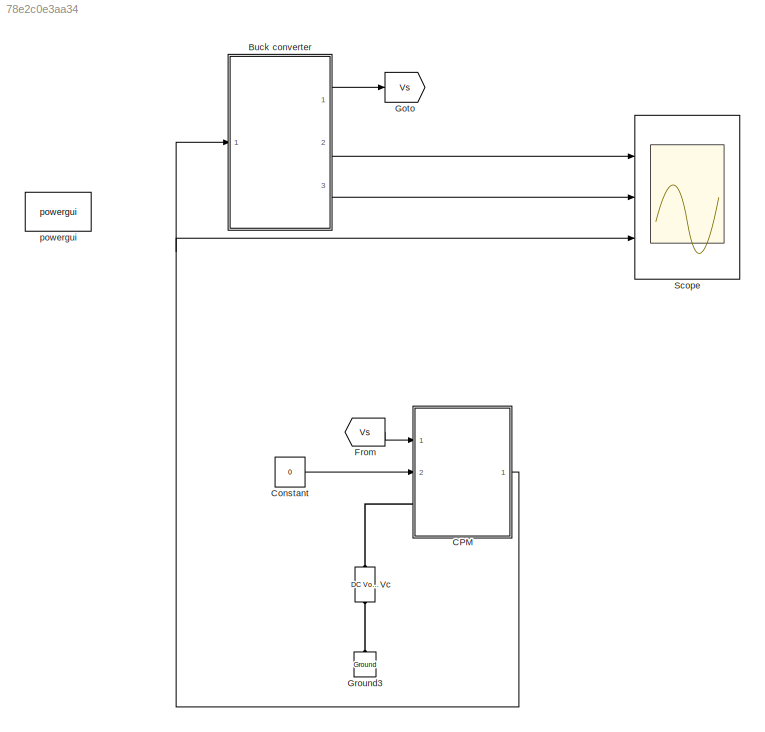
MODEL slx_78e2c0e3aa34
KIND model
CONFIG AbsTol = auto
CONFIG FixedStep = auto
CONFIG MaxStep = 1e-7
CONFIG MinStep = auto
CONFIG RelTol = 1e-7
CONFIG SampleTimeConstraint = Unconstrained
CONFIG Solver = ode23tb
CONFIG SolverMode = Auto
CONFIG SolverName = ode23tb
CONFIG StartTime = 0.0
CONFIG StopTime = 1e-2
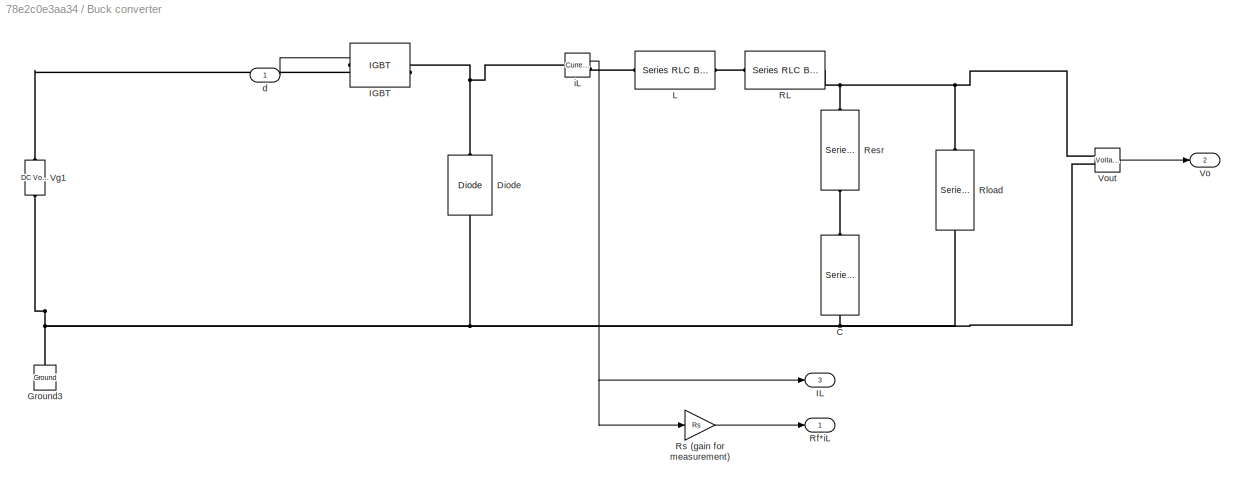
BLOCK [SubSystem] Buck converter
  Ports = [1, 3]
  RequestExecContextInheritance = off
  Variant = off
BLOCK [Reference] Buck converter/C  REF=powerlib/Elements/Series RLC Branch
  Ports = [0, 0, 0, 0, 0, 1, 1]
  SourceBlock = powerlib/Elements/Series RLC Branch
  SourceType = Series RLC Branch
BLOCK [Reference] Buck converter/Diode  REF=powerlib/Power
Electronics/Diode
  Ports = [0, 0, 0, 0, 0, 1, 1]
  SourceBlock = powerlib/Power\nElectronics/Diode
  SourceType = Diode
BLOCK [Reference] Buck converter/Ground3  REF=powerlib/Elements/Ground
  Ports = [0, 0, 0, 0, 0, 1]
  SourceBlock = powerlib/Elements/Ground
  SourceType = Ground
BLOCK [Reference] Buck converter/IGBT  REF=powerlib/Power
Electronics/IGBT
  Ports = [1, 0, 0, 0, 0, 1, 1]
  SourceBlock = powerlib/Power\nElectronics/IGBT
  SourceType = IGBT
BLOCK [Outport] Buck converter/IL
  IconDisplay = Port number
  Port = 3
BLOCK [Reference] Buck converter/L  REF=powerlib/Elements/Series RLC Branch
  Ports = [0, 0, 0, 0, 0, 1, 1]
  SourceBlock = powerlib/Elements/Series RLC Branch
  SourceType = Series RLC Branch
BLOCK [Reference] Buck converter/RL  REF=powerlib/Elements/Series RLC Branch
  Ports = [0, 0, 0, 0, 0, 1, 1]
  SourceBlock = powerlib/Elements/Series RLC Branch
  SourceType = Series RLC Branch
BLOCK [Reference] Buck converter/Resr  REF=powerlib/Elements/Series RLC Branch
  Ports = [0, 0, 0, 0, 0, 1, 1]
  SourceBlock = powerlib/Elements/Series RLC Branch
  SourceType = Series RLC Branch
BLOCK [Outport] Buck converter/Rf*iL
  IconDisplay = Port number
BLOCK [Reference] Buck converter/Rload   REF=powerlib/Elements/Series RLC Branch
  Ports = [0, 0, 0, 0, 0, 1, 1]
  SourceBlock = powerlib/Elements/Series RLC Branch
  SourceType = Series RLC Branch
BLOCK [Gain] Buck converter/Rs (gain for measurement)
  Gain = Rs
  OutDataTypeStr = Inherit: Inherit via internal rule
  ParamDataTypeStr = Inherit: Inherit via internal rule
  SaturateOnIntegerOverflow = off
BLOCK [Reference] Buck converter/Vg1  REF=powerlib/Electrical
Sources/DC Voltage Source
  Ports = [0, 0, 0, 0, 0, 1, 1]
  SourceBlock = powerlib/Electrical\nSources/DC Voltage Source
  SourceType = DC Voltage Source
BLOCK [Outport] Buck converter/Vo
  IconDisplay = Port number
  Port = 2
BLOCK [Reference] Buck converter/Vout  REF=powerlib/Measurements/Voltage Measurement
  Ports = [0, 1, 0, 0, 0, 2]
  SourceBlock = powerlib/Measurements/Voltage Measurement
  SourceType = Voltage Measurement
  UserDataPersistent = on
BLOCK [Inport] Buck converter/d
  IconDisplay = Port number
BLOCK [Reference] Buck converter/iL  REF=powerlib/Measurements/Current Measurement
  Ports = [0, 1, 0, 0, 0, 1, 1]
  SourceBlock = powerlib/Measurements/Current Measurement
  SourceType = Current Measurement
  UserDataPersistent = on
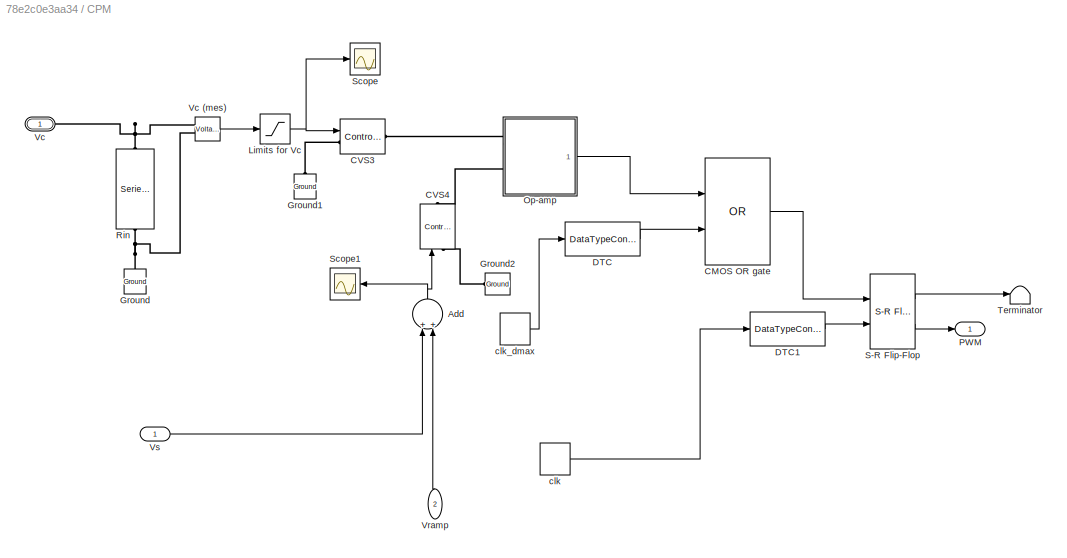
BLOCK [SubSystem] CPM
  Ports = [2, 1, 0, 0, 0, 1]
  RequestExecContextInheritance = off
  Variant = off
BLOCK [Sum] CPM/Add
  InputSameDT = off
  OutDataTypeStr = Inherit: Inherit via internal rule
  Ports = [2, 1]
  SaturateOnIntegerOverflow = off
BLOCK [Logic] CPM/CMOS OR gate
  AllPortsSameDT = off
  Operator = OR
  OutDataTypeStr = boolean
  Ports = [2, 1]
BLOCK [Reference] CPM/CVS3  REF=powerlib/Electrical
Sources/Controlled Voltage Source
  Ports = [1, 0, 0, 0, 0, 1, 1]
  SourceBlock = powerlib/Electrical\nSources/Controlled Voltage Source
  SourceType = Controlled Voltage Source
BLOCK [Reference] CPM/CVS4  REF=powerlib/Electrical
Sources/Controlled Voltage Source
  Ports = [1, 0, 0, 0, 0, 1, 1]
  SourceBlock = powerlib/Electrical\nSources/Controlled Voltage Source
  SourceType = Controlled Voltage Source
BLOCK [DataTypeConversion] CPM/DTC
  LockScale = on
  OutDataTypeStr = boolean
  RndMeth = Floor
BLOCK [DataTypeConversion] CPM/DTC1
  LockScale = on
  OutDataTypeStr = boolean
  RndMeth = Floor
BLOCK [Reference] CPM/Ground  REF=powerlib/Elements/Ground
  Ports = [0, 0, 0, 0, 0, 1]
  SourceBlock = powerlib/Elements/Ground
  SourceType = Ground
BLOCK [Reference] CPM/Ground1  REF=powerlib/Elements/Ground
  Ports = [0, 0, 0, 0, 0, 1]
  SourceBlock = powerlib/Elements/Ground
  SourceType = Ground
BLOCK [Reference] CPM/Ground2  REF=powerlib/Elements/Ground
  Ports = [0, 0, 0, 0, 0, 1]
  SourceBlock = powerlib/Elements/Ground
  SourceType = Ground
BLOCK [Saturate] CPM/Limits for Vc
  InputPortMap = u0
  LowerLimit = 0
  Ports = [1, 1]
  UpperLimit = Vcmax+Voffset
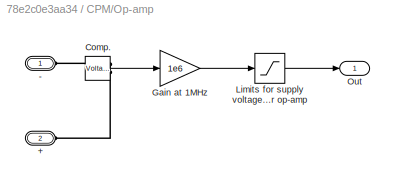
BLOCK [SubSystem] CPM/Op-amp 
  Ports = [0, 1, 0, 0, 0, 2]
  RequestExecContextInheritance = off
  Variant = off
BLOCK [PMIOPort] CPM/Op-amp /+
  Port = 2
  Side = Left
BLOCK [PMIOPort] CPM/Op-amp /-
  Port = 1
  Side = Left
BLOCK [Reference] CPM/Op-amp /Comp.  REF=powerlib/Measurements/Voltage Measurement
  Ports = [0, 1, 0, 0, 0, 2]
  SourceBlock = powerlib/Measurements/Voltage Measurement
  SourceType = Voltage Measurement
  UserDataPersistent = on
BLOCK [Gain] CPM/Op-amp /Gain at 1MHz
  Gain = 1e6
  OutDataTypeStr = Inherit: Inherit via internal rule
  ParamDataTypeStr = Inherit: Inherit via internal rule
  SaturateOnIntegerOverflow = off
BLOCK [Saturate] CPM/Op-amp /Limits for supply voltages for op-amp 
  InputPortMap = u0
  LowerLimit = 0
  Ports = [1, 1]
  UpperLimit = Vcc
BLOCK [Outport] CPM/Op-amp /Out
  IconDisplay = Port number
BLOCK [Outport] CPM/PWM
  IconDisplay = Port number
BLOCK [Reference] CPM/Rin  REF=powerlib/Elements/Series RLC Branch
  Ports = [0, 0, 0, 0, 0, 1, 1]
  SourceBlock = powerlib/Elements/Series RLC Branch
  SourceType = Series RLC Branch
BLOCK [Reference] CPM/S-R Flip-Flop  REF=simulink_extras/Flip Flops/S-R
Flip-Flop
  Ports = [2, 2]
  SourceBlock = simulink_extras/Flip Flops/S-R\nFlip-Flop
  SourceType = SRFlipFlop
BLOCK [Scope] CPM/Scope
  Ports = [1]
  ScopeSpecificationString = Simulink.scopes.TimeScopeBlockCfg('CurrentConfiguration', extmgr.ConfigurationSet(extmgr.Configuration('Core','General UI',true),extmgr.Configuration('Core','Source UI',true),extmgr.Configuration('Sources','WiredSimulink',true,'DataLoggingVariableName','ScopeData1'),extmgr.Configuration('Visuals','Time Domain',true,'SerializedDisplays',{struct('MinYLimReal','4.98258','MaxYLimReal','5.00507','YLabe...<+1390ch>
BLOCK [Scope] CPM/Scope1
  Ports = [1]
  ScopeSpecificationString = Simulink.scopes.TimeScopeBlockCfg('CurrentConfiguration', extmgr.ConfigurationSet(extmgr.Configuration('Core','General UI',true),extmgr.Configuration('Core','Source UI',true),extmgr.Configuration('Sources','WiredSimulink',true,'DataLoggingVariableName','ScopeData2'),extmgr.Configuration('Visuals','Time Domain',true,'SerializedDisplays',{struct('MinYLimReal','4.05316','MaxYLimReal','5.26157','YLabe...<+1379ch>
BLOCK [Terminator] CPM/Terminator
BLOCK [PMIOPort] CPM/Vc
  Port = 1
  Side = Left
BLOCK [Reference] CPM/Vc (mes)  REF=powerlib/Measurements/Voltage Measurement
  Ports = [0, 1, 0, 0, 0, 2]
  SourceBlock = powerlib/Measurements/Voltage Measurement
  SourceType = Voltage Measurement
  UserDataPersistent = on
BLOCK [Inport] CPM/Vramp
  IconDisplay = Port number
  Port = 2
BLOCK [Inport] CPM/Vs
  IconDisplay = Port number
BLOCK [DiscretePulseGenerator] CPM/clk
  Amplitude = 5
  Period = 1/fs
  Ports = [0, 1]
  PulseType = Time based
  PulseWidth = (Dmin+1e-10)*100
BLOCK [DiscretePulseGenerator] CPM/clk_dmax
  Amplitude = 5
  Period = 1/fs
  PhaseDelay = Dmax/fs
  Ports = [0, 1]
  PulseType = Time based
  PulseWidth = (1-Dmax)*100
BLOCK [Constant] Constant
  Value = 0
BLOCK [From] From
  GotoTag = Vs
BLOCK [Goto] Goto
  GotoTag = Vs
BLOCK [Reference] Ground3  REF=powerlib/Elements/Ground
  Ports = [0, 0, 0, 0, 0, 1]
  SourceBlock = powerlib/Elements/Ground
  SourceType = Ground
BLOCK [Scope] Scope
  NumInputPorts = 3
  Ports = [3]
  ScopeSpecificationString = Simulink.scopes.TimeScopeBlockCfg('CurrentConfiguration', extmgr.ConfigurationSet(extmgr.Configuration('Core','General UI',true),extmgr.Configuration('Core','Source UI',true),extmgr.Configuration('Sources','WiredSimulink',true,'DataLoggingVariableName','ScopeData1'),extmgr.Configuration('Visuals','Time Domain',true,'SerializedDisplays',{struct('MinYLimReal','-0.21825','MaxYLimReal','1.96446','YLab...<+2745ch>
BLOCK [Reference] Vc  REF=powerlib/Electrical
Sources/DC Voltage Source
  Ports = [0, 0, 0, 0, 0, 1, 1]
  SourceBlock = powerlib/Electrical\nSources/DC Voltage Source
  SourceType = DC Voltage Source
BLOCK [Reference] powergui  REF=powerlib/powergui
  Ports = []
  Priority = 1
  SourceBlock = powerlib/powergui
  SourceType = PSB option menu block
  UserDataPersistent = on
LINE Buck converter/Rs (gain for measurement):1 -> Buck converter/Rf*iL:1
LINE Buck converter/Vout:1 -> Buck converter/Vo:1
LINE Buck converter/d:1 -> Buck converter/IGBT:1
NET Buck converter/iL:1 -> Buck converter/IL:1, Buck converter/Rs (gain for measurement):1
LINE Buck converter:1 -> Goto:1
LINE Buck converter:2 -> Scope:1
LINE Buck converter:3 -> Scope:2
NET CPM/Add:1 -> CPM/CVS4:1, CPM/Scope1:1
LINE CPM/CMOS OR gate:1 -> CPM/S-R Flip-Flop:1
LINE CPM/DTC1:1 -> CPM/S-R Flip-Flop:2
LINE CPM/DTC:1 -> CPM/CMOS OR gate:2
NET CPM/Limits for Vc:1 -> CPM/CVS3:1, CPM/Scope:1
LINE CPM/Op-amp /Comp.:1 -> CPM/Op-amp /Gain at 1MHz:1
LINE CPM/Op-amp /Gain at 1MHz:1 -> CPM/Op-amp /Limits for supply voltages for op-amp :1
LINE CPM/Op-amp /Limits for supply voltages for op-amp :1 -> CPM/Op-amp /Out:1
LINE CPM/Op-amp :1 -> CPM/CMOS OR gate:1
LINE CPM/S-R Flip-Flop:1 -> CPM/Terminator:1
LINE CPM/S-R Flip-Flop:2 -> CPM/PWM:1
LINE CPM/Vc (mes):1 -> CPM/Limits for Vc:1
LINE CPM/Vramp:1 -> CPM/Add:2
LINE CPM/Vs:1 -> CPM/Add:1
LINE CPM/clk:1 -> CPM/DTC1:1
LINE CPM/clk_dmax:1 -> CPM/DTC:1
NET CPM:1 -> Buck converter:1, Scope:3
LINE Constant:1 -> CPM:2
LINE From:1 -> CPM:1
PLINE Buck converter/C:LConn1 -- Buck converter/Resr:RConn1
PNET net1: Buck converter/C:RConn1 -- Buck converter/Diode:LConn1 -- Buck converter/Ground3:LConn1 -- Buck converter/Rload :RConn1 -- Buck converter/Vg1:LConn1 -- Buck converter/Vout:LConn2
PNET net2: Buck converter/Diode:RConn1 -- Buck converter/IGBT:RConn1 -- Buck converter/iL:LConn1
PLINE Buck converter/IGBT:LConn1 -- Buck converter/Vg1:RConn1
PLINE Buck converter/L:LConn1 -- Buck converter/iL:RConn1
PLINE Buck converter/L:RConn1 -- Buck converter/RL:LConn1
PNET net3: Buck converter/RL:RConn1 -- Buck converter/Resr:LConn1 -- Buck converter/Rload :LConn1 -- Buck converter/Vout:LConn1
PLINE CPM/CVS3:LConn1 -- CPM/Ground1:LConn1
PLINE CPM/CVS3:RConn1 -- CPM/Op-amp :LConn1
PLINE CPM/CVS4:LConn1 -- CPM/Ground2:LConn1
PLINE CPM/CVS4:RConn1 -- CPM/Op-amp :LConn2
PNET net4: CPM/Ground:LConn1 -- CPM/Rin:RConn1 -- CPM/Vc (mes):LConn2
PLINE CPM/Op-amp /+:RConn1 -- CPM/Op-amp /Comp.:LConn1
PLINE CPM/Op-amp /-:RConn1 -- CPM/Op-amp /Comp.:LConn2
PNET net5: CPM/Rin:LConn1 -- CPM/Vc (mes):LConn1 -- CPM/Vc:RConn1
PLINE CPM:LConn1 -- Vc:RConn1
PLINE Ground3:LConn1 -- Vc:LConn1
note: NET lines group one-source signal fan-out (src -> all destinations, sorted); 1:1 wires keep LINE; PNET lines group multi-terminal physical nets as a canonical sorted terminal list (undirected conserving connections); 2-terminal nets keep the pairwise PLINE form
